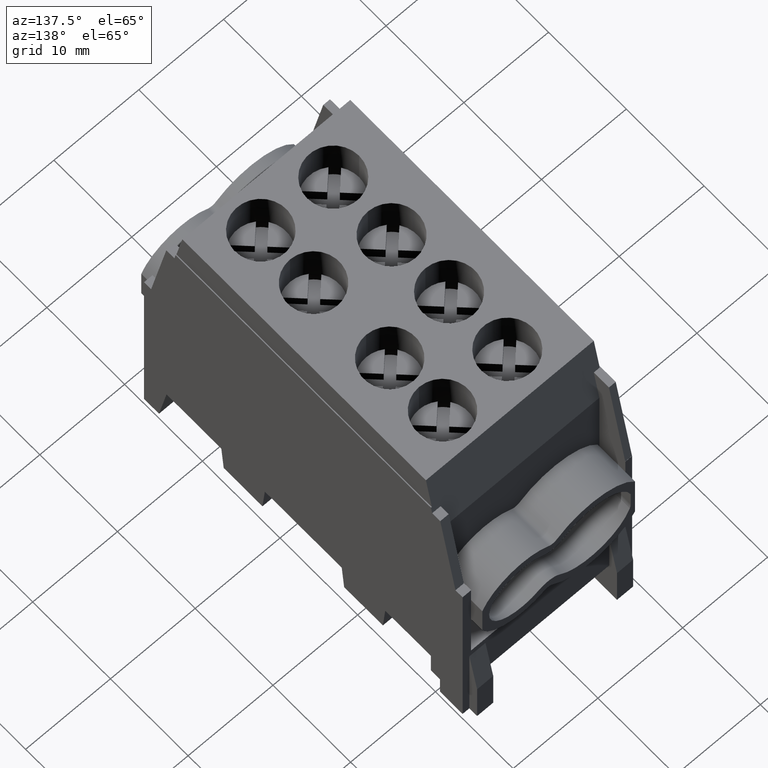
[diagram: clean part render]
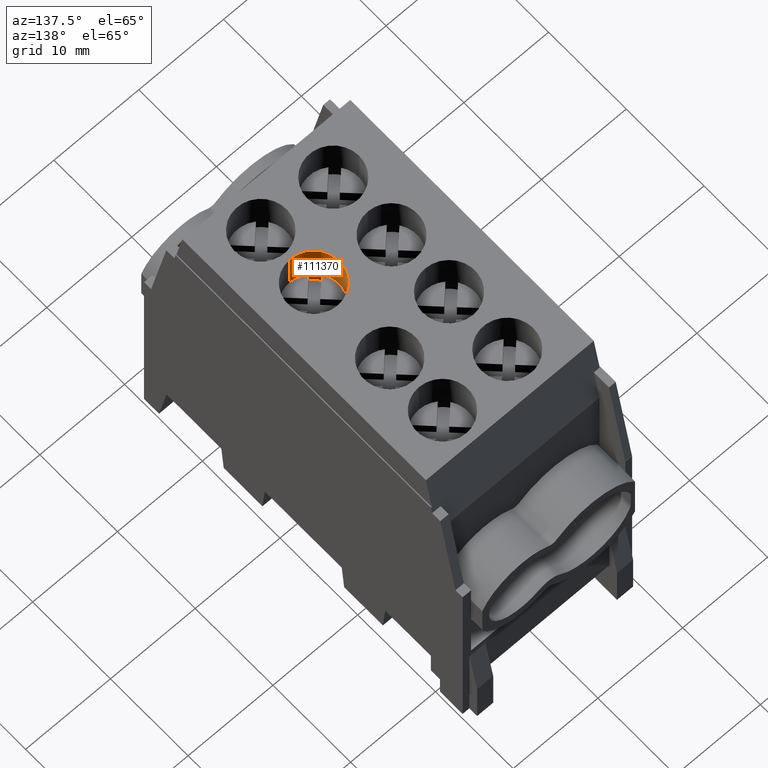
[diagram: same view with one face highlighted and labeled with its STEP entity id]
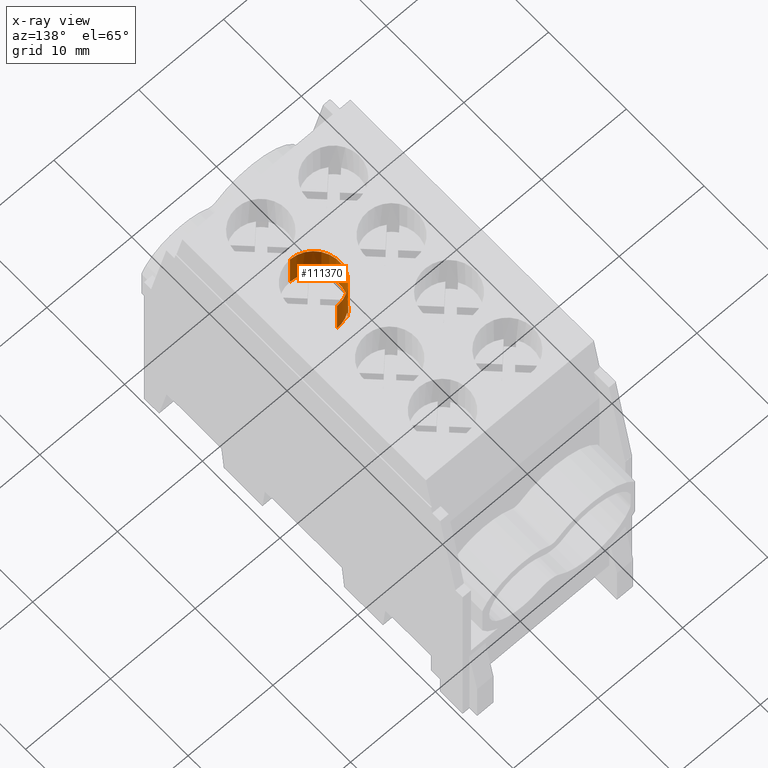
[diagram: x-ray of the same camera — body ghosted, the highlighted face saturated]
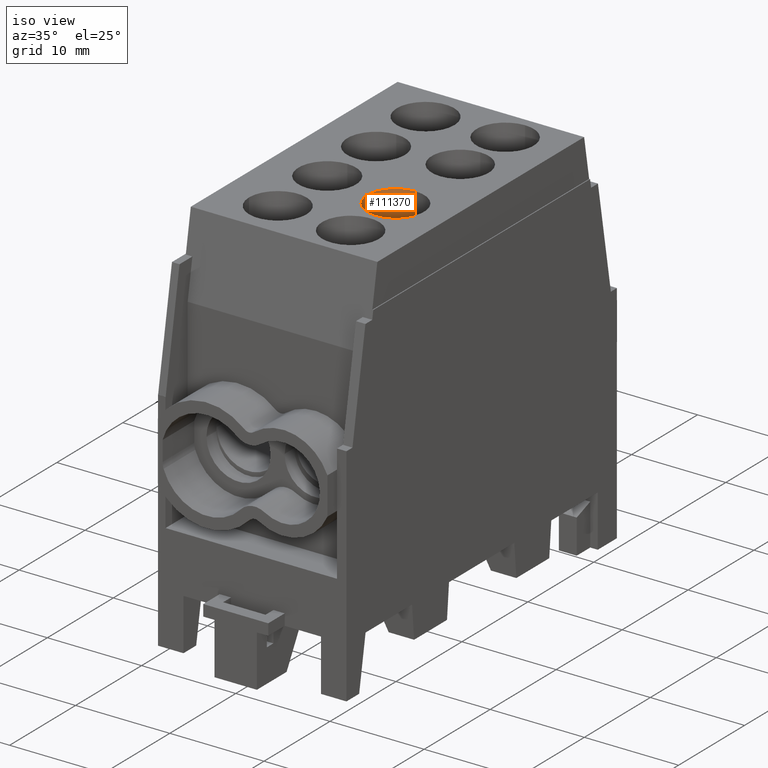
[diagram: same view with one face highlighted and labeled with its STEP entity id]
A machine part, auxiliary view. The second image highlights one B-rep face of the part: STEP entity #111370.
The next image is the same camera in x-ray: the body ghosted, the highlighted face saturated — about 0% of this face is hidden behind the body in this view.
A second angle (iso view) of the same face is appended — the face is thin or edge-on in the first view.
In plain terms, the highlighted cylindrical surface (edge-blend (fillet) strip) has radius 3.025 mm, axis along (0, 0, -1).
Its self-contained STEP definition (entity closure, byte-faithful):
#23250=CARTESIAN_POINT('',(2.62776400908874,-2.3792358716649,
-5.54535933870499));
#23260=VERTEX_POINT('',#23250);
#23290=CARTESIAN_POINT('',(4.29999999999999,-4.90000000000001,
-5.545359338705));
#23300=DIRECTION('',(5.55111512312577E-17,7.04895318703268E-16,-1.));
#23310=DIRECTION('',(2.77555756156289E-16,1.,7.04895318703268E-16));
#23320=AXIS2_PLACEMENT_3D('',#23290,#23300,#23310);
#23330=CIRCLE('',#23320,3.025);
#23340=CARTESIAN_POINT('',(4.3,-1.87500000000001,-5.54535933870499));
#23350=VERTEX_POINT('',#23340);
#23360=EDGE_CURVE('',#23260,#23350,#23330,.T.);
#25730=CARTESIAN_POINT('',(4.29999999999999,-4.90000000000001,
-0.945359338704994));
#25740=DIRECTION('',(5.55111512312577E-17,7.04895318703268E-16,-1.));
#25750=DIRECTION('',(2.77555756156289E-16,1.,7.04895318703268E-16));
#25760=AXIS2_PLACEMENT_3D('',#25730,#25740,#25750);
#25770=CIRCLE('',#25760,3.025);
#25780=CARTESIAN_POINT('',(4.3,-1.87500000000001,-0.945359338704991));
#25790=VERTEX_POINT('',#25780);
#25800=CARTESIAN_POINT('',(4.29999999999999,-7.92500000000001,
-0.945359338704996));
#25810=VERTEX_POINT('',#25800);
#25840=CARTESIAN_POINT('',(1.80774572099038,-6.61443681970444,
-0.945359338704995));
#25850=VERTEX_POINT('',#25840);
#25860=EDGE_CURVE('',#25850,#25790,#25770,.T.);
#25880=EDGE_CURVE('',#25810,#25850,#25770,.T.);
#48630=CARTESIAN_POINT('',(4.29999999999999,-4.9,-6.745359338705));
#48640=DIRECTION('',(5.55111512312577E-17,7.04895318703268E-16,-1.));
#48650=DIRECTION('',(2.77555756156289E-16,1.,7.04895318703268E-16));
#48660=AXIS2_PLACEMENT_3D('',#48630,#48640,#48650);
#48670=CIRCLE('',#48660,3.025);
#48790=CARTESIAN_POINT('',(4.3,-1.87500000000001,-0.945359338704997));
#48800=DIRECTION('',(5.55111512312577E-17,7.04895318703268E-16,-1.));
#48810=VECTOR('',#48800,1.);
#48820=LINE('',#48790,#48810);
#48830=EDGE_CURVE('',#25790,#23350,#48820,.T.);
#48860=CARTESIAN_POINT('',(4.29999999999999,-7.92500000000001,
-0.945359338705002));
#48870=DIRECTION('',(5.55111512312577E-17,7.04895318703268E-16,-1.));
#48880=VECTOR('',#48870,1.);
#48890=LINE('',#48860,#48880);
#48900=CARTESIAN_POINT('',(4.29999999999999,-7.92500000000001,
-5.545359338705));
#48910=VERTEX_POINT('',#48900);
#48920=EDGE_CURVE('',#25810,#48910,#48890,.T.);
#84740=CARTESIAN_POINT('',(2.62776400908874,-2.3792358716649,
-6.745359338705));
#84750=VERTEX_POINT('',#84740);
#84780=CARTESIAN_POINT('',(2.62776400908874,-2.3792358716649,
-0.945359338704998));
#84790=DIRECTION('',(-5.55111512312577E-17,-7.04895318703268E-16,1.));
#84800=VECTOR('',#84790,1.);
#84810=LINE('',#84780,#84800);
#84820=EDGE_CURVE('',#84750,#23260,#84810,.T.);
#90450=CARTESIAN_POINT('',(2.58556318029558,-7.39225427900964,
-0.945359338705001));
#90460=DIRECTION('',(-5.55111512312577E-17,-7.04895318703268E-16,1.));
#90470=VECTOR('',#90460,1.);
#90480=LINE('',#90450,#90470);
#90490=CARTESIAN_POINT('',(2.58556318029558,-7.39225427900963,
-6.745359338705));
#90500=VERTEX_POINT('',#90490);
#90510=CARTESIAN_POINT('',(2.58556318029558,-7.39225427900964,
-5.545359338705));
#90520=VERTEX_POINT('',#90510);
#90530=EDGE_CURVE('',#90500,#90520,#90480,.T.);
#99920=CARTESIAN_POINT('',(1.80774572099038,-6.61443681970443,
-6.745359338705));
#99930=VERTEX_POINT('',#99920);
#99960=CARTESIAN_POINT('',(1.80774572099038,-6.61443681970444,
-0.945359338705001));
#99970=DIRECTION('',(-5.55111512312577E-17,-7.04895318703268E-16,1.));
#99980=VECTOR('',#99970,1.);
#99990=LINE('',#99960,#99980);
#100000=CARTESIAN_POINT('',(1.80774572099038,-6.61443681970444,
-5.545359338705));
#100010=VERTEX_POINT('',#100000);
#100020=EDGE_CURVE('',#99930,#100010,#99990,.T.);
#100250=CARTESIAN_POINT('',(1.77923587166489,-3.22776400908876,
-0.945359338704999));
#100260=DIRECTION('',(-5.55111512312577E-17,-7.04895318703268E-16,1.));
#100270=VECTOR('',#100260,1.);
#100280=LINE('',#100250,#100270);
#100290=CARTESIAN_POINT('',(1.77923587166489,-3.22776400908875,
-6.745359338705));
#100300=VERTEX_POINT('',#100290);
#100310=CARTESIAN_POINT('',(1.77923587166489,-3.22776400908875,
-5.54535933870499));
#100320=VERTEX_POINT('',#100310);
#100330=EDGE_CURVE('',#100300,#100320,#100280,.T.);
#105200=EDGE_CURVE('',#90500,#99930,#48670,.T.);
#105240=EDGE_CURVE('',#100300,#84750,#48670,.T.);
#105570=EDGE_CURVE('',#48910,#90520,#23330,.T.);
#105760=CARTESIAN_POINT('',(4.29999999999999,-4.90000000000001,
-5.545359338705));
#105770=DIRECTION('',(5.55111512312577E-17,7.04895318703268E-16,-1.));
#105780=DIRECTION('',(2.77555756156289E-16,1.,7.04895318703268E-16));
#105790=AXIS2_PLACEMENT_3D('',#105760,#105770,#105780);
#105800=CIRCLE('',#105790,3.025);
#105810=EDGE_CURVE('',#100010,#100320,#105800,.T.);
#111170=CARTESIAN_POINT('',(4.29999999999999,-4.90000000000001,
-0.945359338705));
#111180=DIRECTION('',(5.55111512312577E-17,7.04895318703268E-16,-1.));
#111190=DIRECTION('',(2.77555756156289E-16,1.,7.04895318703268E-16));
#111200=AXIS2_PLACEMENT_3D('',#111170,#111180,#111190);
#111210=CYLINDRICAL_SURFACE('',#111200,3.025);
#111220=ORIENTED_EDGE('',*,*,#25860,.F.);
#111230=ORIENTED_EDGE('',*,*,#48830,.F.);
#111240=ORIENTED_EDGE('',*,*,#23360,.T.);
#111250=ORIENTED_EDGE('',*,*,#84820,.T.);
#111260=ORIENTED_EDGE('',*,*,#105240,.T.);
#111270=ORIENTED_EDGE('',*,*,#100330,.F.);
#111280=ORIENTED_EDGE('',*,*,#105810,.T.);
#111290=ORIENTED_EDGE('',*,*,#100020,.T.);
#111300=ORIENTED_EDGE('',*,*,#105200,.T.);
#111310=ORIENTED_EDGE('',*,*,#90530,.F.);
#111320=ORIENTED_EDGE('',*,*,#105570,.T.);
#111330=ORIENTED_EDGE('',*,*,#48920,.T.);
#111340=ORIENTED_EDGE('',*,*,#25880,.F.);
#111350=EDGE_LOOP('',(#111340,#111330,#111320,#111310,#111300,#111290,
#111280,#111270,#111260,#111250,#111240,#111230,#111220));
#111360=FACE_OUTER_BOUND('',#111350,.T.);
#111370=ADVANCED_FACE('',(#111360),#111210,.F.);